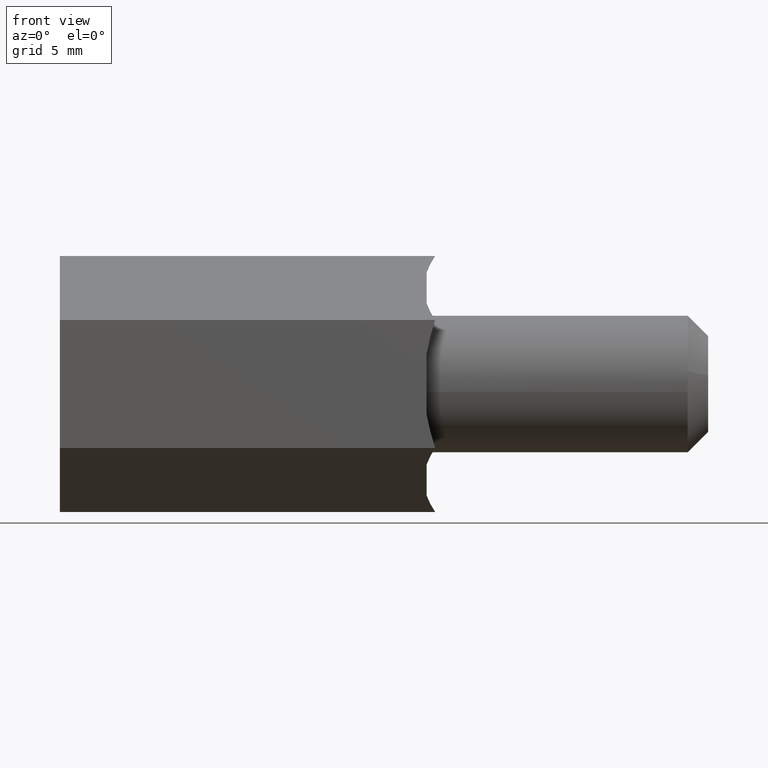
[diagram: clean part render]
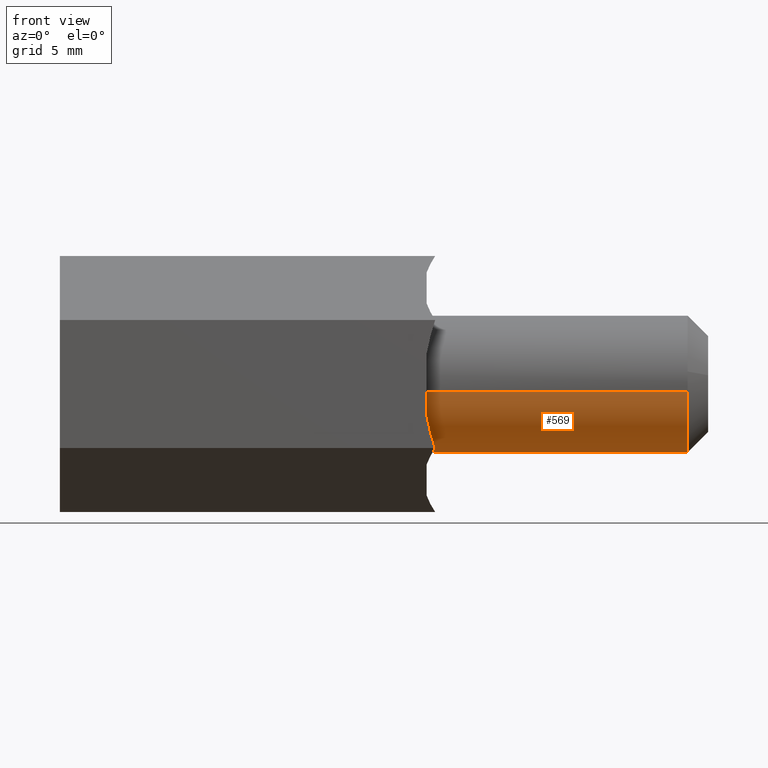
[diagram: same view with one face highlighted and labeled with its STEP entity id]
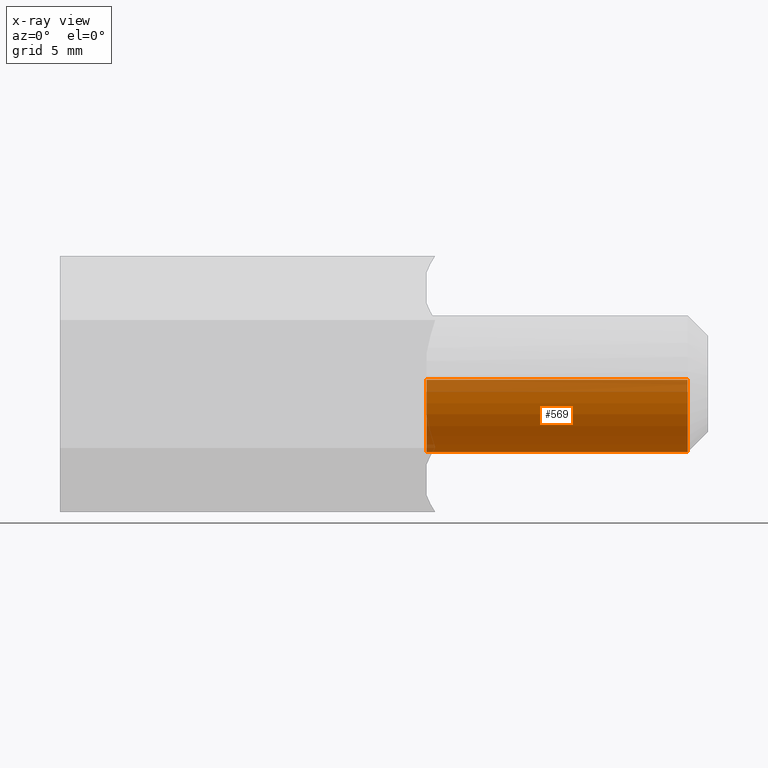
[diagram: x-ray of the same camera — body ghosted, the highlighted face saturated]
A machine part, front view. The second image highlights one B-rep face of the part: STEP entity #569.
The next image is the same camera in x-ray: the body ghosted, the highlighted face saturated — about 18% of this face is hidden behind the body in this view.
In plain terms, the highlighted face is a freeform B-spline surface patch.
Its self-contained STEP definition (entity closure, byte-faithful):
#300=CARTESIAN_POINT('',(36.799999999977892,3.999847692277395,-0.034906142155650));
#301=VERTEX_POINT('',#300);
#307=CARTESIAN_POINT('',(36.799999999999997,3.992539193685000,0.244194158179768));
#308=VERTEX_POINT('',#307);
#309=CARTESIAN_POINT('',(36.799999999999997,3.992539193685000,0.244194158179768));
#310=CARTESIAN_POINT('',(36.799999999999997,4.000000000000001,0.122211053234808));
#311=CARTESIAN_POINT('',(36.799999999999997,4.0,0.0));
#312=CARTESIAN_POINT('',(36.799999999999997,4.000000000000001,-0.017453403444772));
#313=CARTESIAN_POINT('',(36.799999999977885,3.999847692277395,-0.034906142155650));
#321=(BOUNDED_CURVE()B_SPLINE_CURVE(2,(#309,#310,#311,#312,#313),.UNSPECIFIED.,.F.,.U.)B_SPLINE_CURVE_WITH_KNOTS((3,2,3),(0.739332962238482,0.750000000000000,0.751539894349251),.UNSPECIFIED.)CURVE()GEOMETRIC_REPRESENTATION_ITEM()RATIONAL_B_SPLINE_CURVE((0.976072041665729,0.987502787899297,1.0,0.998195901549660,0.996414028067394))REPRESENTATION_ITEM(''));
#322=EDGE_CURVE('',#308,#301,#321,.T.);
#362=CARTESIAN_POINT('',(36.799999999999997,-3.972038105450791,-0.472136938659628));
#363=VERTEX_POINT('',#362);
#379=CARTESIAN_POINT('',(36.799999999999997,0.0,-4.0));
#380=VERTEX_POINT('',#379);
#381=CARTESIAN_POINT('',(36.799999999999997,0.0,-4.0));
#382=CARTESIAN_POINT('',(36.799999999999997,-3.552698103746752,-4.0));
#383=CARTESIAN_POINT('',(36.799999999999990,-3.972038105450791,-0.472136938659628));
#391=(BOUNDED_CURVE()B_SPLINE_CURVE(2,(#381,#382,#383),.UNSPECIFIED.,.F.,.U.)B_SPLINE_CURVE_WITH_KNOTS((3,3),(0.0,0.229562473512871),.UNSPECIFIED.)CURVE()GEOMETRIC_REPRESENTATION_ITEM()RATIONAL_B_SPLINE_CURVE((1.0,0.731050832856150,0.956026754182449))REPRESENTATION_ITEM(''));
#392=EDGE_CURVE('',#380,#363,#391,.T.);
#394=CARTESIAN_POINT('',(36.799999999977892,3.999847692277395,-0.034906142155650));
#395=CARTESIAN_POINT('',(36.799999999999997,3.965244842058780,-4.000000000000000));
#396=CARTESIAN_POINT('',(36.799999999999997,0.0,-4.0));
#404=(BOUNDED_CURVE()B_SPLINE_CURVE(2,(#394,#395,#396),.UNSPECIFIED.,.F.,.U.)B_SPLINE_CURVE_WITH_KNOTS((3,3),(0.751539894349252,1.0),.UNSPECIFIED.)CURVE()GEOMETRIC_REPRESENTATION_ITEM()RATIONAL_B_SPLINE_CURVE((0.996414028067393,0.708910879636888,1.0))REPRESENTATION_ITEM(''));
#405=EDGE_CURVE('',#301,#380,#404,.T.);
#464=CARTESIAN_POINT('',(21.500000000000000,-3.972038105450791,-0.472136938659629));
#465=VERTEX_POINT('',#464);
#483=CARTESIAN_POINT('',(36.799999999999997,-3.972038105450791,-0.472136938659628));
#484=CARTESIAN_POINT('',(21.500000000000000,-3.972038105450791,-0.472136938659629));
#485=QUASI_UNIFORM_CURVE('',1,(#483,#484),.UNSPECIFIED.,.F.,.U.);
#486=EDGE_CURVE('',#363,#465,#485,.T.);
#491=CARTESIAN_POINT('',(21.500000000000000,3.992539193685000,0.244194158179767));
#492=VERTEX_POINT('',#491);
#493=CARTESIAN_POINT('',(36.799999999999997,3.992539193685000,0.244194158179768));
#494=CARTESIAN_POINT('',(21.500000000000000,3.992539193685000,0.244194158179767));
#495=QUASI_UNIFORM_CURVE('',1,(#493,#494),.UNSPECIFIED.,.F.,.U.);
#496=EDGE_CURVE('',#308,#492,#495,.T.);
#514=CARTESIAN_POINT('',(37.182500000000012,3.992539193687467,0.244194158139428));
#515=CARTESIAN_POINT('',(37.182500000000005,4.236733351826894,-3.748345035548039));
#516=CARTESIAN_POINT('',(37.182500000000012,0.244194158139428,-3.992539193687467));
#517=CARTESIAN_POINT('',(37.182500000000005,-3.526173963358004,-4.223144786930110));
#518=CARTESIAN_POINT('',(37.182500000000005,-3.972038105454666,-0.472136938627034));
#519=CARTESIAN_POINT('',(21.107937499999998,3.992539193687467,0.244194158139428));
#520=CARTESIAN_POINT('',(21.107937499999998,4.236733351826894,-3.748345035548039));
#521=CARTESIAN_POINT('',(21.107937499999998,0.244194158139428,-3.992539193687467));
#522=CARTESIAN_POINT('',(21.107937499999998,-3.526173963358004,-4.223144786930110));
#523=CARTESIAN_POINT('',(21.107937500000006,-3.972038105454666,-0.472136938627034));
#531=(BOUNDED_SURFACE()B_SPLINE_SURFACE(2,1,((#514,#519),(#515,#520),(#516,#521),(#517,#522),(#518,#523)),.UNSPECIFIED.,.F.,.F.,.U.)B_SPLINE_SURFACE_WITH_KNOTS((3,2,3),(2,2),(0.0,6.627416997969518,12.989737316020260),(0.0,16.074562500000010),.UNSPECIFIED.)GEOMETRIC_REPRESENTATION_ITEM()RATIONAL_B_SPLINE_SURFACE(((1.0,1.0),(0.707106781186548,0.707106781186548),(1.0,1.0),(0.718822509939086,0.718822509939086),(0.977505800795127,0.977505800795127)))REPRESENTATION_ITEM('')SURFACE());
#532=CARTESIAN_POINT('',(21.500000000000000,0.0,-4.0));
#533=VERTEX_POINT('',#532);
#534=CARTESIAN_POINT('',(21.500000000000000,0.0,-4.0));
#535=CARTESIAN_POINT('',(21.500000000000004,-3.552698103746738,-4.000000000000000));
#536=CARTESIAN_POINT('',(21.500000000000000,-3.972038105450791,-0.472136938659628));
#544=(BOUNDED_CURVE()B_SPLINE_CURVE(2,(#534,#535,#536),.UNSPECIFIED.,.F.,.U.)B_SPLINE_CURVE_WITH_KNOTS((3,3),(0.500000000000000,0.729562473512870),.UNSPECIFIED.)CURVE()GEOMETRIC_REPRESENTATION_ITEM()RATIONAL_B_SPLINE_CURVE((1.0,0.731050832856151,0.956026754182448))REPRESENTATION_ITEM(''));
#545=EDGE_CURVE('',#533,#465,#544,.T.);
#546=ORIENTED_EDGE('',*,*,#545,.F.);
#547=CARTESIAN_POINT('',(21.500000000000004,3.992539193685000,0.244194158179767));
#548=CARTESIAN_POINT('',(21.499999999999996,4.000000000000001,0.122211053234808));
#549=CARTESIAN_POINT('',(21.500000000000000,4.0,0.0));
#550=CARTESIAN_POINT('',(21.499999999999996,4.000000000000000,-4.000000000000000));
#551=CARTESIAN_POINT('',(21.500000000000000,0.0,-4.0));
#559=(BOUNDED_CURVE()B_SPLINE_CURVE(2,(#547,#548,#549,#550,#551),.UNSPECIFIED.,.F.,.U.)B_SPLINE_CURVE_WITH_KNOTS((3,2,3),(0.239332962238482,0.250000000000000,0.500000000000000),.UNSPECIFIED.)CURVE()GEOMETRIC_REPRESENTATION_ITEM()RATIONAL_B_SPLINE_CURVE((0.976072041665729,0.987502787899297,1.0,0.707106781186548,1.0))REPRESENTATION_ITEM(''));
#560=EDGE_CURVE('',#492,#533,#559,.T.);
#561=ORIENTED_EDGE('',*,*,#560,.F.);
#562=ORIENTED_EDGE('',*,*,#496,.F.);
#563=ORIENTED_EDGE('',*,*,#322,.T.);
#564=ORIENTED_EDGE('',*,*,#405,.T.);
#565=ORIENTED_EDGE('',*,*,#392,.T.);
#566=ORIENTED_EDGE('',*,*,#486,.T.);
#567=EDGE_LOOP('',(#546,#561,#562,#563,#564,#565,#566));
#568=FACE_OUTER_BOUND('',#567,.T.);
#569=ADVANCED_FACE('',(#568),#531,.T.);